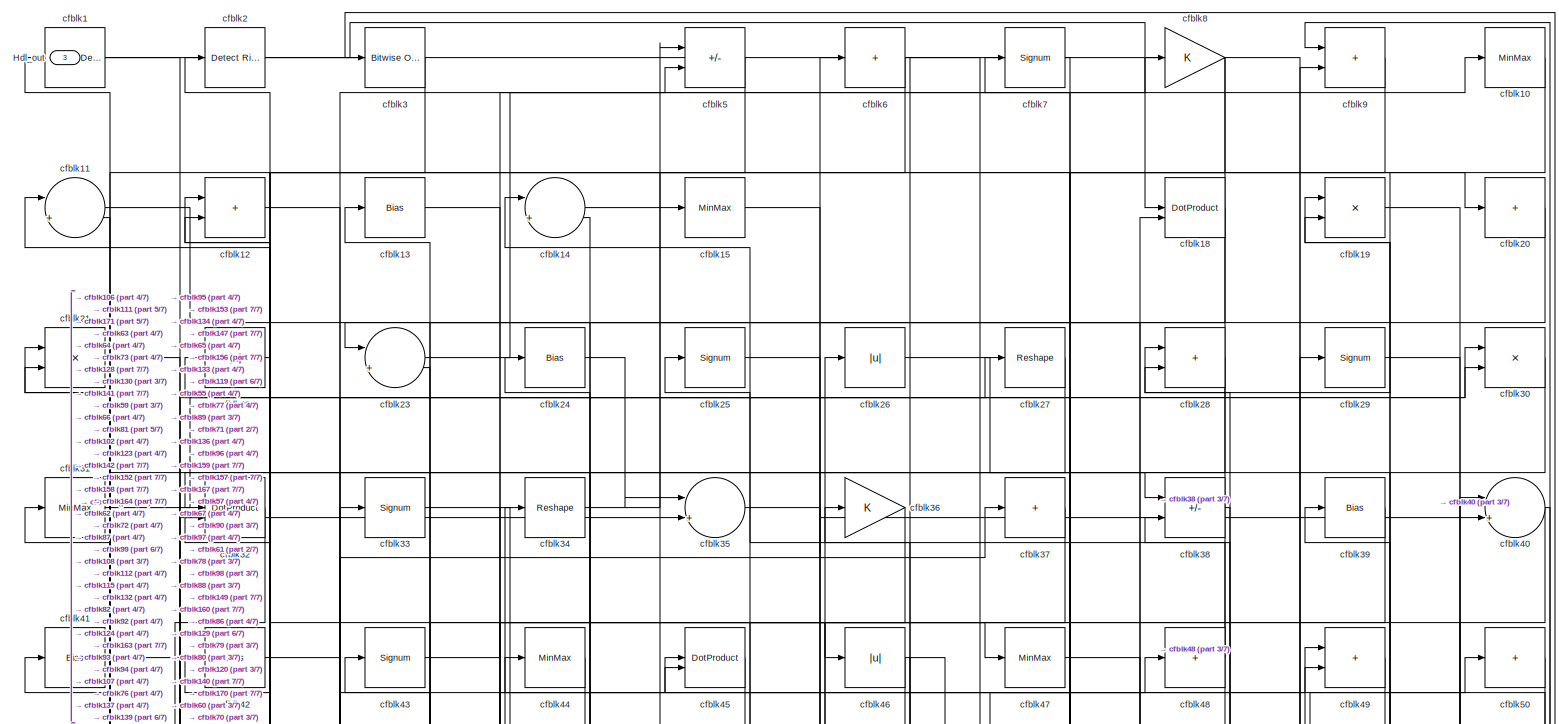
[diagram: root canvas - part 1/7, full width, top band]
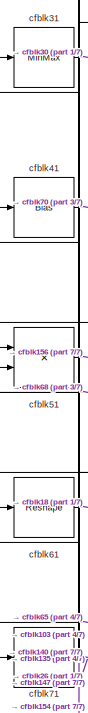
[diagram: root canvas - part 2/7, top left region]
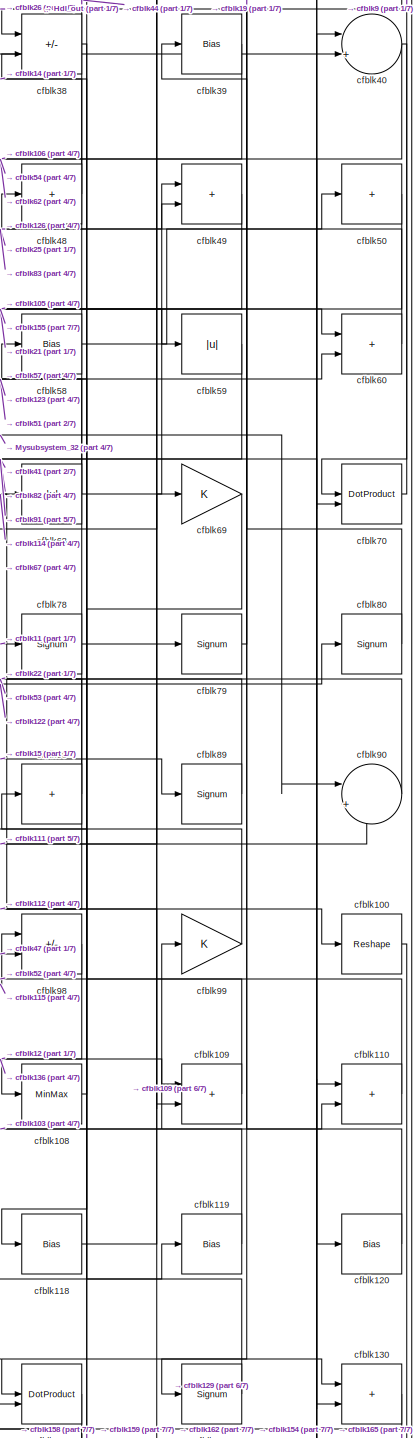
[diagram: root canvas - part 3/7, middle right region]
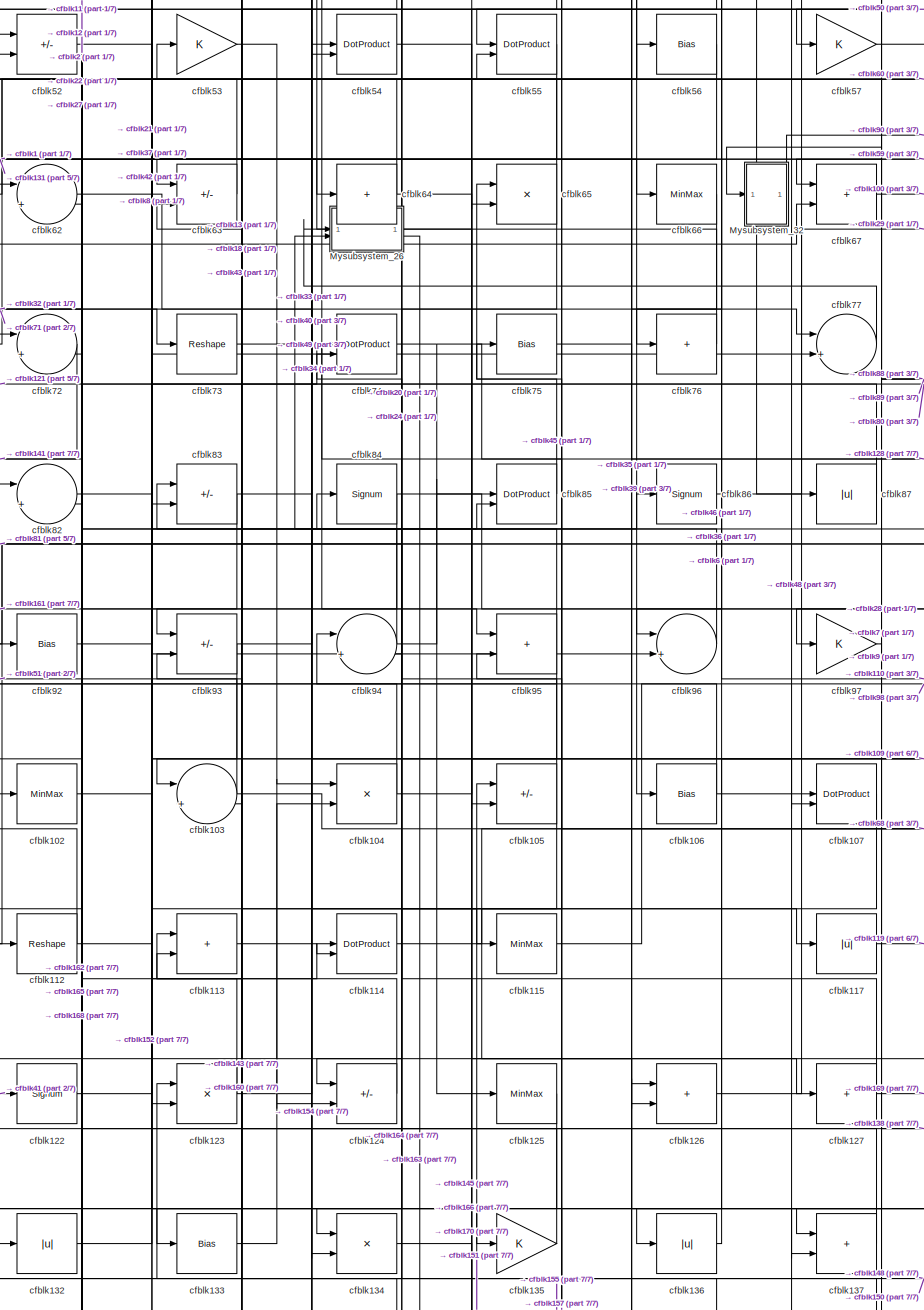
[diagram: root canvas - part 4/7, central region]
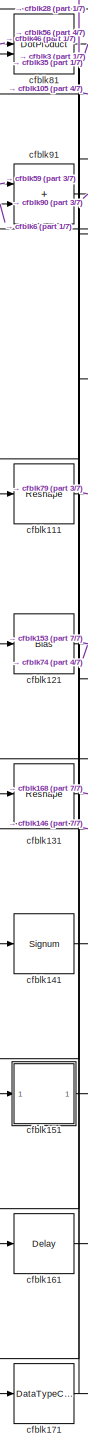
[diagram: root canvas - part 5/7, bottom left region]
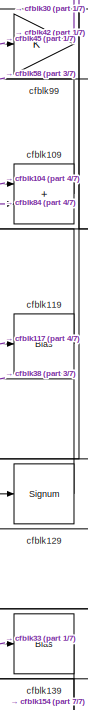
[diagram: root canvas - part 6/7, middle right region]
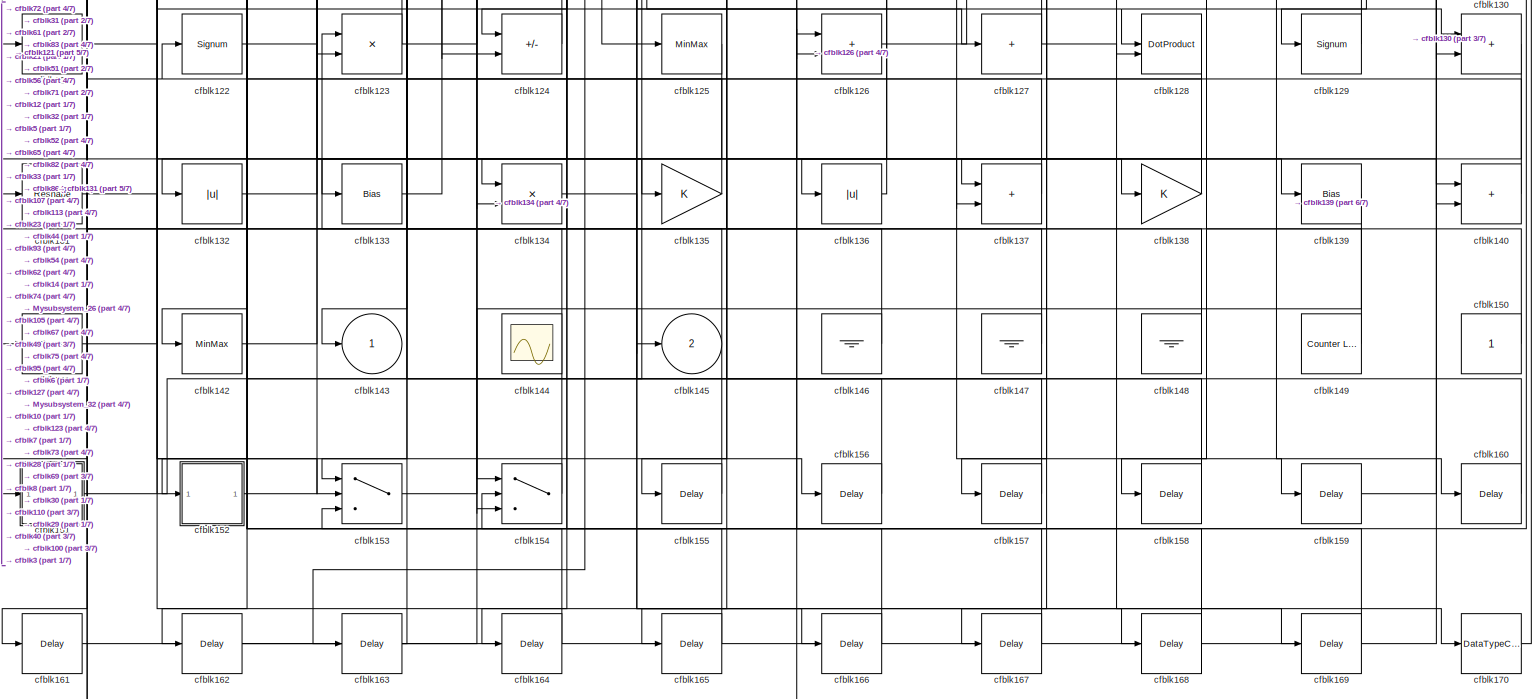
[diagram: root canvas - part 7/7, full width, bottom band]
MODEL slx_875f5d18c238
KIND model
CONFIG AbsTol = auto
CONFIG EnableMultiTasking = off
CONFIG FixedStep = auto
CONFIG MaxStep = auto
CONFIG MinStep = auto
CONFIG RelTol = 1e-3
CONFIG SampleTimeConstraint = Unconstrained
CONFIG SolverName = VariableStepAuto
CONFIG StartTime = 0.0
CONFIG StopTime = 10.0
BLOCK [Outport] Hdl_out
  OutDataTypeStr = uint8
  Port = 3
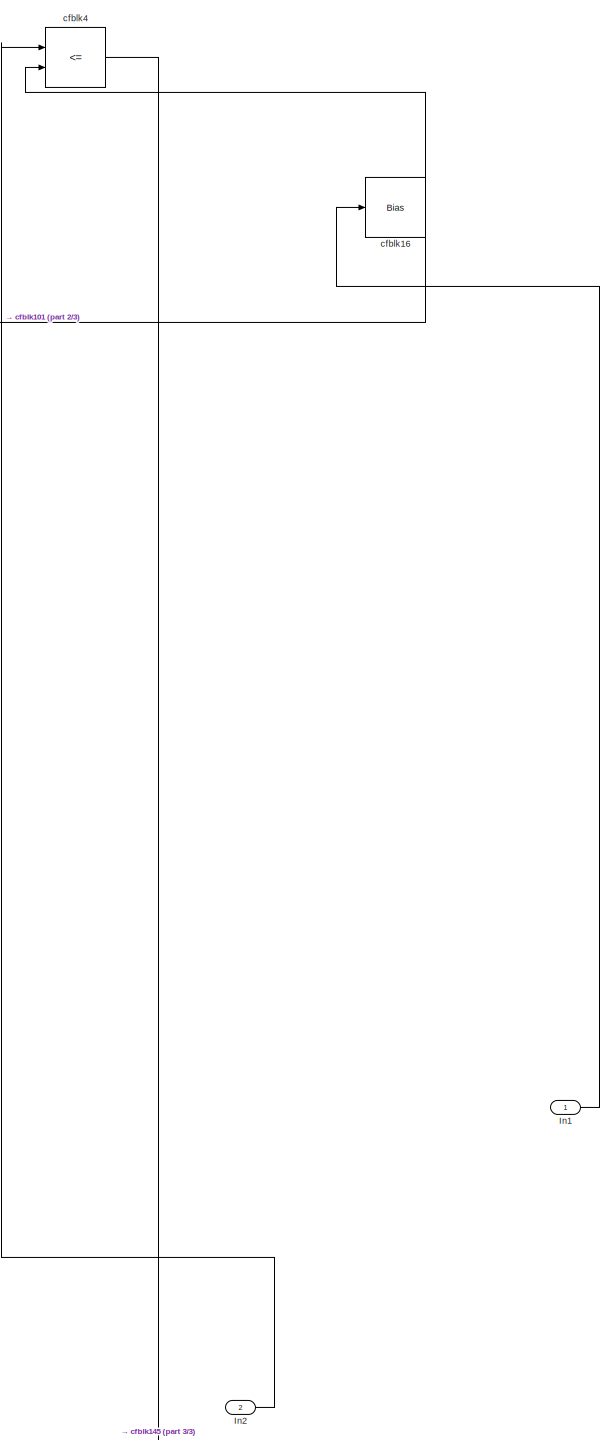
[diagram: Mysubsystem_26 - part 1/3, top right region]
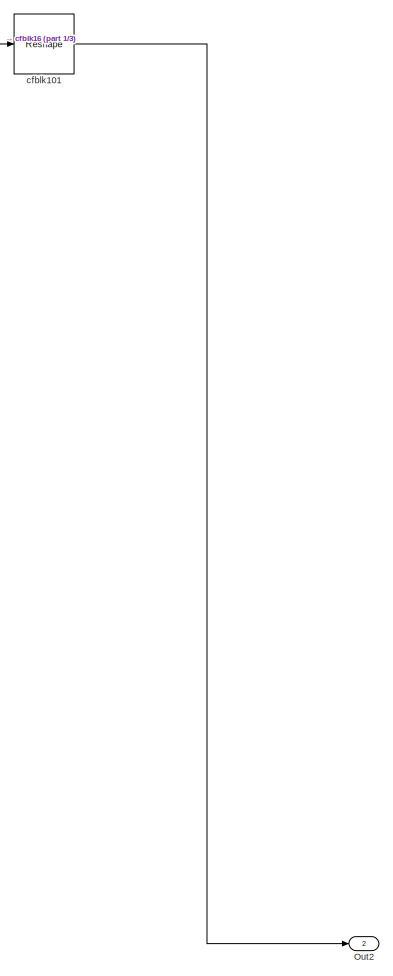
[diagram: Mysubsystem_26 - part 2/3, bottom left region]
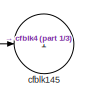
[diagram: Mysubsystem_26 - part 3/3, bottom center region]
BLOCK [SubSystem] Mysubsystem_26
  RTWFcnName = Mysubsystem_26
  RTWFcnNameOpts = User specified
  RTWFileNameOpts = Use function name
  RTWSystemCode = Reusable function
  TreatAsAtomicUnit = on
BLOCK [Inport] Mysubsystem_26/In1
BLOCK [Inport] Mysubsystem_26/In2
  Port = 2
BLOCK [Outport] Mysubsystem_26/Out2
  Port = 2
BLOCK [Reshape] Mysubsystem_26/cfblk101
BLOCK [Outport] Mysubsystem_26/cfblk145
  VectorParamsAs1DForOutWhenUnconnected = off
BLOCK [Bias] Mysubsystem_26/cfblk16
  Bias = 0.0
  SaturateOnIntegerOverflow = off
BLOCK [RelationalOperator] Mysubsystem_26/cfblk4
  InputSameDT = off
  Operator = <=
  OutDataTypeStr = boolean
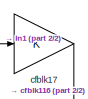
[diagram: Mysubsystem_32 - part 1/2, top left region]
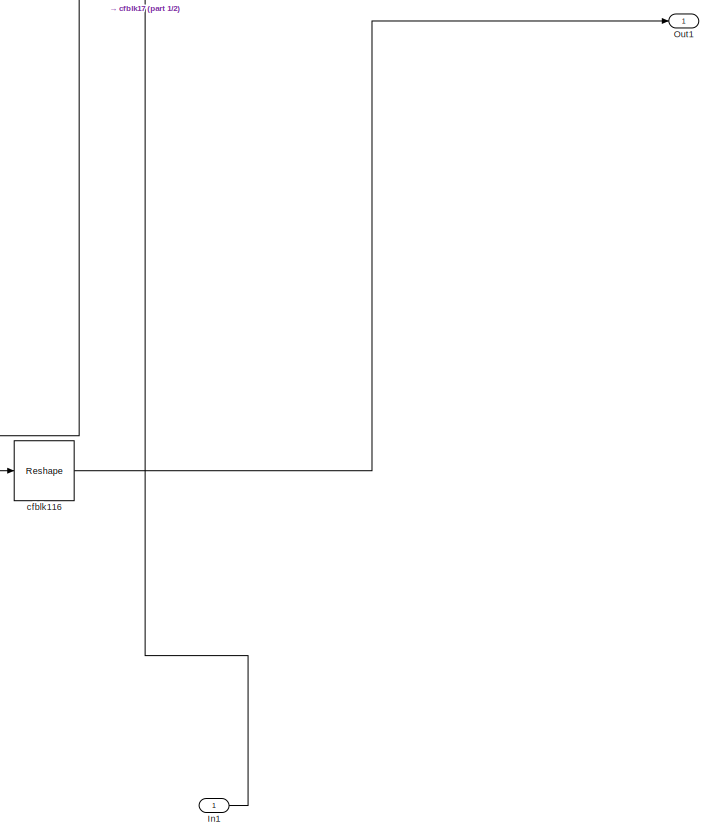
[diagram: Mysubsystem_32 - part 2/2, full width, bottom band]
BLOCK [SubSystem] Mysubsystem_32
  RTWFcnName = Mysubsystem_32
  RTWFcnNameOpts = User specified
  RTWFileNameOpts = Use function name
  RTWSystemCode = Reusable function
  TreatAsAtomicUnit = on
BLOCK [Inport] Mysubsystem_32/In1
BLOCK [Outport] Mysubsystem_32/Out1
BLOCK [Reshape] Mysubsystem_32/cfblk116
BLOCK [Gain] Mysubsystem_32/cfblk17
BLOCK [Reference] cfblk1  REF=simulink/Logic and Bit
Operations/Detect
Decrease
  LibrarySourceBlock = hdlsllib/Logic and Bit\nOperations/Detect\nDecrease
  SourceBlock = simulink/Logic and Bit\nOperations/Detect\nDecrease
  SourceType = Detect Decrease
BLOCK [MinMax] cfblk10
  OutDataTypeStr = uint8
BLOCK [Reshape] cfblk100
BLOCK [MinMax] cfblk102
  OutDataTypeStr = uint8
BLOCK [Sum] cfblk103
  Inputs = |++
  OutDataTypeStr = uint8
BLOCK [Product] cfblk104
  Inputs = */
  OutDataTypeStr = uint8
  RndMeth = Zero
  SaturateOnIntegerOverflow = on
BLOCK [Sum] cfblk105
  IconShape = rectangular
  Inputs = +-
  OutDataTypeStr = uint8
BLOCK [Bias] cfblk106
  Bias = 0.0
  SaturateOnIntegerOverflow = off
BLOCK [DotProduct] cfblk107
  OutDataTypeStr = uint8
BLOCK [MinMax] cfblk108
  OutDataTypeStr = uint8
BLOCK [Sum] cfblk109
  IconShape = rectangular
  OutDataTypeStr = uint8
BLOCK [Sum] cfblk11
  Inputs = |++
  OutDataTypeStr = uint8
BLOCK [Sum] cfblk110
  IconShape = rectangular
  OutDataTypeStr = uint8
BLOCK [Reshape] cfblk111
BLOCK [Reshape] cfblk112
BLOCK [Sum] cfblk113
  IconShape = rectangular
  OutDataTypeStr = uint8
BLOCK [DotProduct] cfblk114
  OutDataTypeStr = uint8
BLOCK [MinMax] cfblk115
  OutDataTypeStr = uint8
BLOCK [Abs] cfblk117
  OutDataTypeStr = uint8
  SaturateOnIntegerOverflow = off
BLOCK [Bias] cfblk118
  Bias = 0.0
  SaturateOnIntegerOverflow = off
BLOCK [Bias] cfblk119
  Bias = 0.0
  SaturateOnIntegerOverflow = off
BLOCK [Sum] cfblk12
  IconShape = rectangular
  OutDataTypeStr = uint8
BLOCK [Bias] cfblk120
  Bias = 0.0
  SaturateOnIntegerOverflow = off
BLOCK [Bias] cfblk121
  Bias = 0.0
  SaturateOnIntegerOverflow = off
BLOCK [Signum] cfblk122
BLOCK [Product] cfblk123
  Inputs = */
  OutDataTypeStr = uint8
  RndMeth = Zero
  SaturateOnIntegerOverflow = on
BLOCK [Sum] cfblk124
  IconShape = rectangular
  Inputs = +-
  OutDataTypeStr = uint8
BLOCK [MinMax] cfblk125
  OutDataTypeStr = uint8
BLOCK [Sum] cfblk126
  IconShape = rectangular
  OutDataTypeStr = uint8
BLOCK [Sum] cfblk127
  IconShape = rectangular
  Inputs = +
  OutDataTypeStr = uint8
BLOCK [DotProduct] cfblk128
  OutDataTypeStr = uint8
BLOCK [Signum] cfblk129
BLOCK [Bias] cfblk13
  Bias = 0.0
  SaturateOnIntegerOverflow = off
BLOCK [Sum] cfblk130
  IconShape = rectangular
  OutDataTypeStr = uint8
BLOCK [Reshape] cfblk131
BLOCK [Abs] cfblk132
  OutDataTypeStr = uint8
  SaturateOnIntegerOverflow = off
BLOCK [Bias] cfblk133
  Bias = 0.0
  SaturateOnIntegerOverflow = off
BLOCK [Product] cfblk134
  Inputs = */
  OutDataTypeStr = uint8
  RndMeth = Zero
  SaturateOnIntegerOverflow = on
BLOCK [Gain] cfblk135
  OutDataTypeStr = uint8
BLOCK [Abs] cfblk136
  OutDataTypeStr = uint8
  SaturateOnIntegerOverflow = off
BLOCK [Sum] cfblk137
  IconShape = rectangular
  OutDataTypeStr = uint8
BLOCK [Gain] cfblk138
  OutDataTypeStr = uint8
BLOCK [Bias] cfblk139
  Bias = 0.0
  SaturateOnIntegerOverflow = off
BLOCK [Sum] cfblk14
  Inputs = |++
  OutDataTypeStr = uint8
BLOCK [Sum] cfblk140
  IconShape = rectangular
  OutDataTypeStr = uint8
BLOCK [Signum] cfblk141
BLOCK [MinMax] cfblk142
  OutDataTypeStr = uint8
BLOCK [Outport] cfblk143
  OutDataTypeStr = uint8
  VectorParamsAs1DForOutWhenUnconnected = off
BLOCK [Scope] cfblk144
  Floating = on
  NumInputPorts = 1
  ScopeSpecificationString = Simulink.scopes.TimeScopeBlockCfg('CurrentConfiguration', extmgr.ConfigurationSet(extmgr.Configuration('Core','General UI',true,'FigureColor',[0.156862745098039 0.156862745098039 0.156862745098039]),extmgr.Configuration('Core','Source UI',true),extmgr.Configuration('Sources','WiredSimulink',true,'DataLoggingVariableName','ScopeData1','DataLoggingSaveFormat','StructureWithTime','DataLoggingLimitDat...<+2713ch>
BLOCK [Outport] cfblk145
  OutDataTypeStr = uint8
  Port = 2
  VectorParamsAs1DForOutWhenUnconnected = off
BLOCK [Ground] cfblk146
BLOCK [Ground] cfblk147
BLOCK [Ground] cfblk148
BLOCK [Reference] cfblk149  REF=hdlsllib/Sources/Counter
Limited
  SourceBlock = hdlsllib/Sources/Counter\nLimited
  SourceType = Counter Limited
BLOCK [MinMax] cfblk15
  OutDataTypeStr = uint8
BLOCK [Constant] cfblk150
  OutDataTypeStr = uint8
  SampleTime = -1
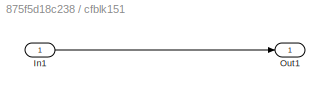
BLOCK [SubSystem] cfblk151
  LibrarySourceBlock = hdlsllib/Ports &\nSubsystems/Subsystem
BLOCK [Inport] cfblk151/In1
BLOCK [Outport] cfblk151/Out1
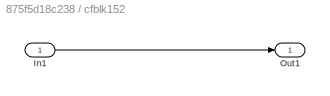
BLOCK [SubSystem] cfblk152
  LibrarySourceBlock = hdlsllib/Ports &\nSubsystems/Subsystem
BLOCK [Inport] cfblk152/In1
BLOCK [Outport] cfblk152/Out1
BLOCK [Switch] cfblk153
  InputSameDT = off
  OutDataTypeStr = uint8
  SaturateOnIntegerOverflow = off
BLOCK [Switch] cfblk154
  InputSameDT = off
  OutDataTypeStr = uint8
  SaturateOnIntegerOverflow = off
BLOCK [Delay] cfblk155
  InputPortMap = u0
  SampleTime = 1
BLOCK [Delay] cfblk156
  InputPortMap = u0
  SampleTime = 1
BLOCK [Delay] cfblk157
  InputPortMap = u0
  SampleTime = 1
BLOCK [Delay] cfblk158
  InputPortMap = u0
  SampleTime = 1
BLOCK [Delay] cfblk159
  InputPortMap = u0
  SampleTime = 1
BLOCK [Delay] cfblk160
  InputPortMap = u0
  SampleTime = 1
BLOCK [Delay] cfblk161
  InputPortMap = u0
  SampleTime = 1
BLOCK [Delay] cfblk162
  InputPortMap = u0
  SampleTime = 1
BLOCK [Delay] cfblk163
  InputPortMap = u0
  SampleTime = 1
BLOCK [Delay] cfblk164
  InputPortMap = u0
  SampleTime = 1
BLOCK [Delay] cfblk165
  InputPortMap = u0
  SampleTime = 1
BLOCK [Delay] cfblk166
  InputPortMap = u0
  SampleTime = 1
BLOCK [Delay] cfblk167
  InputPortMap = u0
  SampleTime = 1
BLOCK [Delay] cfblk168
  InputPortMap = u0
  SampleTime = 1
BLOCK [Delay] cfblk169
  InputPortMap = u0
  SampleTime = 1
BLOCK [DataTypeConversion] cfblk170
  OutDataTypeStr = uint8
  RndMeth = Floor
  SaturateOnIntegerOverflow = off
BLOCK [DataTypeConversion] cfblk171
  OutDataTypeStr = uint8
  RndMeth = Floor
  SaturateOnIntegerOverflow = off
BLOCK [DotProduct] cfblk18
  OutDataTypeStr = uint8
BLOCK [Product] cfblk19
  Inputs = */
  OutDataTypeStr = uint8
  RndMeth = Zero
  SaturateOnIntegerOverflow = on
BLOCK [Reference] cfblk2  REF=hdlsllib/Logic and Bit
Operations/Detect Rise
Positive
  SourceBlock = hdlsllib/Logic and Bit\nOperations/Detect Rise\nPositive
  SourceType = Detect Rise Positive
BLOCK [Sum] cfblk20
  IconShape = rectangular
  Inputs = +
  OutDataTypeStr = uint8
BLOCK [Product] cfblk21
  Inputs = */
  OutDataTypeStr = uint8
  RndMeth = Zero
  SaturateOnIntegerOverflow = on
BLOCK [Abs] cfblk22
  OutDataTypeStr = uint8
  SaturateOnIntegerOverflow = off
BLOCK [Sum] cfblk23
  Inputs = |++
  OutDataTypeStr = uint8
BLOCK [Bias] cfblk24
  Bias = 0.0
  SaturateOnIntegerOverflow = off
BLOCK [Signum] cfblk25
BLOCK [Abs] cfblk26
  OutDataTypeStr = uint8
  SaturateOnIntegerOverflow = off
BLOCK [Reshape] cfblk27
BLOCK [Sum] cfblk28
  IconShape = rectangular
  OutDataTypeStr = uint8
BLOCK [Signum] cfblk29
BLOCK [Reference] cfblk3  REF=simulink/Logic and Bit
Operations/Bitwise
Operator
  LibrarySourceBlock = hdlsllib/Logic and Bit\nOperations/Bitwise\nOperator
  SourceBlock = simulink/Logic and Bit\nOperations/Bitwise\nOperator
  SourceType = Bitwise Operator
BLOCK [Product] cfblk30
  Inputs = */
  OutDataTypeStr = uint8
  RndMeth = Zero
  SaturateOnIntegerOverflow = on
BLOCK [MinMax] cfblk31
  OutDataTypeStr = uint8
BLOCK [DotProduct] cfblk32
  OutDataTypeStr = uint8
BLOCK [Signum] cfblk33
BLOCK [Reshape] cfblk34
BLOCK [Sum] cfblk35
  Inputs = |++
  OutDataTypeStr = uint8
BLOCK [Gain] cfblk36
  OutDataTypeStr = uint8
BLOCK [Sum] cfblk37
  IconShape = rectangular
  Inputs = +
  OutDataTypeStr = uint8
BLOCK [Sum] cfblk38
  IconShape = rectangular
  Inputs = +-
  OutDataTypeStr = uint8
BLOCK [Bias] cfblk39
  Bias = 0.0
  SaturateOnIntegerOverflow = off
BLOCK [Sum] cfblk40
  Inputs = |++
  OutDataTypeStr = uint8
BLOCK [Bias] cfblk41
  Bias = 0.0
  SaturateOnIntegerOverflow = off
BLOCK [Bias] cfblk42
  Bias = 0.0
  SaturateOnIntegerOverflow = off
BLOCK [Signum] cfblk43
BLOCK [MinMax] cfblk44
  OutDataTypeStr = uint8
BLOCK [DotProduct] cfblk45
  OutDataTypeStr = uint8
BLOCK [Abs] cfblk46
  OutDataTypeStr = uint8
  SaturateOnIntegerOverflow = off
BLOCK [MinMax] cfblk47
  OutDataTypeStr = uint8
BLOCK [Sum] cfblk48
  IconShape = rectangular
  Inputs = +
  OutDataTypeStr = uint8
BLOCK [Sum] cfblk49
  IconShape = rectangular
  OutDataTypeStr = uint8
BLOCK [Sum] cfblk5
  IconShape = rectangular
  Inputs = +-
  OutDataTypeStr = uint8
BLOCK [Sum] cfblk50
  IconShape = rectangular
  Inputs = +
  OutDataTypeStr = uint8
BLOCK [Product] cfblk51
  Inputs = */
  OutDataTypeStr = uint8
  RndMeth = Zero
  SaturateOnIntegerOverflow = on
BLOCK [Sum] cfblk52
  IconShape = rectangular
  Inputs = +-
  OutDataTypeStr = uint8
BLOCK [Gain] cfblk53
  OutDataTypeStr = uint8
BLOCK [DotProduct] cfblk54
  OutDataTypeStr = uint8
BLOCK [DotProduct] cfblk55
  OutDataTypeStr = uint8
BLOCK [Bias] cfblk56
  Bias = 0.0
  SaturateOnIntegerOverflow = off
BLOCK [Gain] cfblk57
  OutDataTypeStr = uint8
BLOCK [Bias] cfblk58
  Bias = 0.0
  SaturateOnIntegerOverflow = off
BLOCK [Abs] cfblk59
  OutDataTypeStr = uint8
  SaturateOnIntegerOverflow = off
BLOCK [Sum] cfblk6
  IconShape = rectangular
  Inputs = +
  OutDataTypeStr = uint8
BLOCK [Sum] cfblk60
  IconShape = rectangular
  OutDataTypeStr = uint8
BLOCK [Reshape] cfblk61
BLOCK [Sum] cfblk62
  Inputs = |++
  OutDataTypeStr = uint8
BLOCK [Sum] cfblk63
  IconShape = rectangular
  Inputs = +-
  OutDataTypeStr = uint8
BLOCK [Sum] cfblk64
  IconShape = rectangular
  Inputs = +
  OutDataTypeStr = uint8
BLOCK [Product] cfblk65
  Inputs = */
  OutDataTypeStr = uint8
  RndMeth = Zero
  SaturateOnIntegerOverflow = on
BLOCK [MinMax] cfblk66
  OutDataTypeStr = uint8
BLOCK [Sum] cfblk67
  IconShape = rectangular
  OutDataTypeStr = uint8
BLOCK [Abs] cfblk68
  OutDataTypeStr = uint8
  SaturateOnIntegerOverflow = off
BLOCK [Gain] cfblk69
  OutDataTypeStr = uint8
BLOCK [Signum] cfblk7
BLOCK [DotProduct] cfblk70
  OutDataTypeStr = uint8
BLOCK [MinMax] cfblk71
  OutDataTypeStr = uint8
BLOCK [Sum] cfblk72
  Inputs = |++
  OutDataTypeStr = uint8
BLOCK [Reshape] cfblk73
BLOCK [DotProduct] cfblk74
  OutDataTypeStr = uint8
BLOCK [Bias] cfblk75
  Bias = 0.0
  SaturateOnIntegerOverflow = off
BLOCK [Sum] cfblk76
  IconShape = rectangular
  Inputs = +
  OutDataTypeStr = uint8
BLOCK [Sum] cfblk77
  Inputs = |++
  OutDataTypeStr = uint8
BLOCK [Signum] cfblk78
BLOCK [Signum] cfblk79
BLOCK [Gain] cfblk8
  OutDataTypeStr = uint8
BLOCK [Signum] cfblk80
BLOCK [DotProduct] cfblk81
  OutDataTypeStr = uint8
BLOCK [Sum] cfblk82
  Inputs = |++
  OutDataTypeStr = uint8
BLOCK [Sum] cfblk83
  IconShape = rectangular
  Inputs = +-
  OutDataTypeStr = uint8
BLOCK [Signum] cfblk84
BLOCK [DotProduct] cfblk85
  OutDataTypeStr = uint8
BLOCK [Signum] cfblk86
BLOCK [Abs] cfblk87
  OutDataTypeStr = uint8
  SaturateOnIntegerOverflow = off
BLOCK [Sum] cfblk88
  IconShape = rectangular
  Inputs = +
  OutDataTypeStr = uint8
BLOCK [Signum] cfblk89
BLOCK [Sum] cfblk9
  IconShape = rectangular
  OutDataTypeStr = uint8
BLOCK [Sum] cfblk90
  Inputs = |++
  OutDataTypeStr = uint8
BLOCK [Sum] cfblk91
  IconShape = rectangular
  OutDataTypeStr = uint8
BLOCK [Bias] cfblk92
  Bias = 0.0
  SaturateOnIntegerOverflow = off
BLOCK [Sum] cfblk93
  IconShape = rectangular
  Inputs = +-
  OutDataTypeStr = uint8
BLOCK [Sum] cfblk94
  Inputs = |++
  OutDataTypeStr = uint8
BLOCK [Sum] cfblk95
  IconShape = rectangular
  OutDataTypeStr = uint8
BLOCK [Sum] cfblk96
  Inputs = |++
  OutDataTypeStr = uint8
BLOCK [Gain] cfblk97
  OutDataTypeStr = uint8
BLOCK [Sum] cfblk98
  IconShape = rectangular
  Inputs = +-
  OutDataTypeStr = uint8
BLOCK [Gain] cfblk99
  OutDataTypeStr = uint8
LINE Mysubsystem_26/In1:1 -> Mysubsystem_26/cfblk16:1
LINE Mysubsystem_26/In2:1 -> Mysubsystem_26/cfblk4:1
LINE Mysubsystem_26/cfblk101:1 -> Mysubsystem_26/Out2:1
NET Mysubsystem_26/cfblk16:1 -> Mysubsystem_26/cfblk101:1, Mysubsystem_26/cfblk4:2
LINE Mysubsystem_26/cfblk4:1 -> Mysubsystem_26/cfblk145:1
LINE Mysubsystem_26:1 -> cfblk145:1
LINE Mysubsystem_26:2 -> cfblk163:1
LINE Mysubsystem_32/In1:1 -> Mysubsystem_32/cfblk17:1
LINE Mysubsystem_32/cfblk116:1 -> Mysubsystem_32/Out1:1
LINE Mysubsystem_32/cfblk17:1 -> Mysubsystem_32/cfblk116:1
LINE Mysubsystem_32:1 -> cfblk90:1
LINE cfblk100:1 -> cfblk154:2
LINE cfblk102:1 -> cfblk135:1
NET cfblk103:1 -> cfblk110:2, cfblk117:1, cfblk51:1
NET cfblk104:1 -> cfblk109:1, cfblk94:1
NET cfblk105:1 -> cfblk164:1, cfblk81:2, cfblk92:1
NET cfblk106:1 -> cfblk107:1, cfblk1:1
LINE cfblk107:1 -> cfblk143:1
LINE cfblk108:1 -> cfblk88:1
LINE cfblk109:1 -> cfblk58:1
NET cfblk10:1 -> cfblk167:1, cfblk28:1
LINE cfblk110:1 -> cfblk52:1
LINE cfblk111:1 -> cfblk79:1
NET cfblk112:1 -> cfblk134:2, cfblk21:2, cfblk45:1
LINE cfblk113:1 -> cfblk114:2
LINE cfblk114:1 -> cfblk68:1
LINE cfblk115:1 -> cfblk98:1
LINE cfblk117:1 -> cfblk119:1
LINE cfblk118:1 -> cfblk69:1
NET cfblk119:1 -> cfblk45:2, cfblk99:1
LINE cfblk11:1 -> cfblk78:1
LINE cfblk120:1 -> cfblk39:1
NET cfblk121:1 -> cfblk153:2, cfblk74:1
NET cfblk122:1 -> cfblk55:2, cfblk80:1
NET cfblk123:1 -> cfblk12:1, cfblk60:2
LINE cfblk124:1 -> cfblk13:1
LINE cfblk125:1 -> cfblk132:1
LINE cfblk126:1 -> cfblk48:1
NET cfblk127:1 -> cfblk169:1, cfblk84:1
LINE cfblk128:1 -> cfblk151:1
LINE cfblk129:1 -> cfblk38:2
LINE cfblk12:1 -> cfblk108:1
LINE cfblk130:1 -> cfblk165:1
LINE cfblk131:1 -> cfblk168:1
NET cfblk132:1 -> cfblk114:1, cfblk37:1
NET cfblk133:1 -> cfblk104:2, cfblk83:1
LINE cfblk134:1 -> cfblk166:1
NET cfblk135:1 -> cfblk122:1, cfblk41:1
LINE cfblk136:1 -> cfblk36:1
LINE cfblk137:1 -> cfblk113:1
LINE cfblk138:1 -> cfblk72:2
LINE cfblk139:1 -> cfblk154:3
LINE cfblk13:1 -> cfblk107:2
LINE cfblk140:1 -> cfblk7:1
NET cfblk141:1 -> cfblk30:2, cfblk56:1
LINE cfblk142:1 -> cfblk33:1
LINE cfblk146:1 -> cfblk121:1
NET cfblk147:1 -> cfblk14:2, cfblk61:1
NET cfblk148:1 -> Mysubsystem_32:1, cfblk123:1
LINE cfblk149:1 -> cfblk28:2
LINE cfblk14:1 -> cfblk20:1
LINE cfblk150:1 -> cfblk75:1
LINE cfblk151/In1:1 -> cfblk151/Out1:1
NET cfblk151:1 -> cfblk105:1, cfblk67:2
LINE cfblk152/In1:1 -> cfblk152/Out1:1
LINE cfblk152:1 -> cfblk86:1
LINE cfblk153:1 -> cfblk5:2
LINE cfblk154:1 -> cfblk31:1
LINE cfblk155:1 -> cfblk113:2
LINE cfblk156:1 -> cfblk5:1
LINE cfblk157:1 -> cfblk95:2
LINE cfblk158:1 -> cfblk12:2
LINE cfblk159:1 -> cfblk40:1
LINE cfblk15:1 -> cfblk89:1
LINE cfblk160:1 -> cfblk93:2
LINE cfblk161:1 -> cfblk54:1
LINE cfblk162:1 -> cfblk110:1
LINE cfblk163:1 -> cfblk23:2
LINE cfblk164:1 -> cfblk32:2
LINE cfblk165:1 -> cfblk52:2
LINE cfblk166:1 -> cfblk126:1
LINE cfblk167:1 -> cfblk153:3
LINE cfblk168:1 -> cfblk82:2
LINE cfblk169:1 -> cfblk74:2
LINE cfblk170:1 -> cfblk3:1
NET cfblk171:1 -> cfblk6:1, cfblk91:2
LINE cfblk18:1 -> cfblk93:1
LINE cfblk19:1 -> cfblk120:1
LINE cfblk1:1 -> cfblk66:1
NET cfblk20:1 -> cfblk23:1, cfblk94:2
NET cfblk21:1 -> cfblk128:1, cfblk130:1, cfblk59:1
LINE cfblk22:1 -> cfblk62:1
LINE cfblk23:1 -> cfblk10:1
LINE cfblk24:1 -> cfblk35:1
LINE cfblk25:1 -> cfblk40:2
LINE cfblk26:1 -> cfblk38:1
LINE cfblk27:1 -> cfblk72:1
NET cfblk28:1 -> cfblk111:1, cfblk134:1, cfblk57:1
LINE cfblk29:1 -> cfblk140:1
LINE cfblk2:1 -> cfblk18:1
NET cfblk30:1 -> cfblk129:1, cfblk152:1
LINE cfblk31:1 -> cfblk30:1
LINE cfblk32:1 -> cfblk73:1
NET cfblk33:1 -> cfblk137:2, cfblk139:1, cfblk95:1
LINE cfblk34:1 -> cfblk15:1
LINE cfblk35:1 -> cfblk77:1
LINE cfblk36:1 -> cfblk63:1
NET cfblk37:1 -> cfblk46:1, cfblk55:1
LINE cfblk38:1 -> cfblk118:1
NET cfblk39:1 -> cfblk106:1, cfblk62:2
LINE cfblk3:1 -> cfblk171:1
NET cfblk40:1 -> cfblk130:2, cfblk54:2, cfblk70:1
NET cfblk41:1 -> cfblk65:2, cfblk70:2
NET cfblk42:1 -> cfblk115:1, cfblk96:2
LINE cfblk43:1 -> cfblk47:1
LINE cfblk44:1 -> cfblk153:1
LINE cfblk45:1 -> cfblk133:1
NET cfblk46:1 -> cfblk76:1, cfblk81:1, cfblk87:1
LINE cfblk47:1 -> cfblk98:2
LINE cfblk48:1 -> cfblk14:1
LINE cfblk49:1 -> cfblk155:1
LINE cfblk50:1 -> cfblk105:2
LINE cfblk51:1 -> cfblk156:1
LINE cfblk52:1 -> cfblk64:1
NET cfblk53:1 -> cfblk104:1, cfblk124:2
LINE cfblk54:1 -> cfblk170:1
LINE cfblk55:1 -> cfblk83:2
LINE cfblk56:1 -> cfblk131:1
LINE cfblk57:1 -> cfblk60:1
LINE cfblk58:1 -> cfblk50:1
NET cfblk59:1 -> cfblk82:1, cfblk91:1
LINE cfblk5:1 -> cfblk142:1
LINE cfblk60:1 -> cfblk25:1
LINE cfblk61:1 -> cfblk18:2
LINE cfblk62:1 -> cfblk154:1
LINE cfblk63:1 -> cfblk11:2
NET cfblk64:1 -> cfblk126:2, cfblk21:1
NET cfblk65:1 -> cfblk162:1, cfblk24:1, cfblk71:1
LINE cfblk66:1 -> cfblk124:1
LINE cfblk67:1 -> cfblk100:1
NET cfblk68:1 -> cfblk49:1, cfblk51:2
LINE cfblk69:1 -> cfblk158:1
NET cfblk6:1 -> cfblk159:1, cfblk32:1, cfblk96:1
LINE cfblk70:1 -> cfblk9:1
NET cfblk71:1 -> cfblk140:2, cfblk26:1
LINE cfblk72:1 -> cfblk141:1
LINE cfblk73:1 -> cfblk128:2
NET cfblk74:1 -> cfblk125:1, cfblk127:1
LINE cfblk75:1 -> cfblk138:1
LINE cfblk76:1 -> cfblk34:1
LINE cfblk77:1 -> Mysubsystem_26:1
LINE cfblk78:1 -> cfblk9:2
LINE cfblk79:1 -> cfblk19:1
NET cfblk7:1 -> cfblk157:1, cfblk97:1
LINE cfblk80:1 -> cfblk19:2
LINE cfblk81:1 -> cfblk35:2
LINE cfblk82:1 -> cfblk27:1
NET cfblk83:1 -> cfblk161:1, cfblk49:2
NET cfblk84:1 -> cfblk103:1, cfblk109:2
LINE cfblk85:1 -> cfblk65:1
LINE cfblk86:1 -> cfblk29:1
LINE cfblk87:1 -> cfblk2:1
NET cfblk88:1 -> Hdl_out:1, cfblk112:1, cfblk44:1
LINE cfblk89:1 -> cfblk53:1
NET cfblk8:1 -> cfblk102:1, cfblk160:1
LINE cfblk90:1 -> cfblk22:1
LINE cfblk91:1 -> cfblk90:2
NET cfblk92:1 -> cfblk77:2, cfblk8:1
NET cfblk93:1 -> cfblk123:2, cfblk63:2, cfblk85:2
NET cfblk94:1 -> cfblk43:1, cfblk85:1
NET cfblk95:1 -> Mysubsystem_26:2, cfblk103:2
LINE cfblk96:1 -> cfblk11:1
LINE cfblk97:1 -> cfblk137:1
LINE cfblk98:1 -> cfblk136:1
LINE cfblk99:1 -> cfblk42:1
LINE cfblk9:1 -> cfblk67:1
note: NET lines group one-source signal fan-out (src -> all destinations, sorted); 1:1 wires keep LINE
